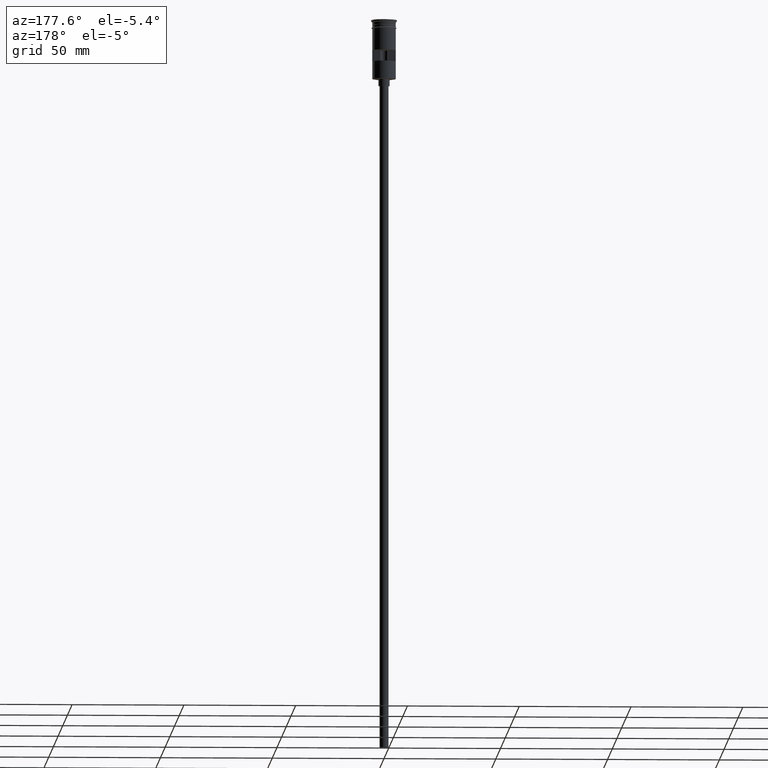
[diagram: clean part render]
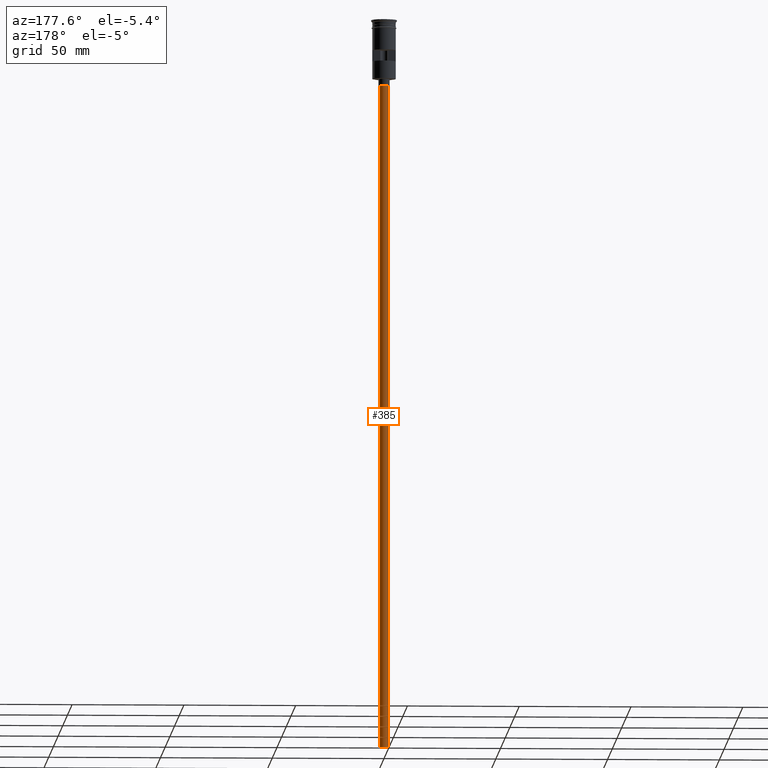
[diagram: same view with one face highlighted and labeled with its STEP entity id]
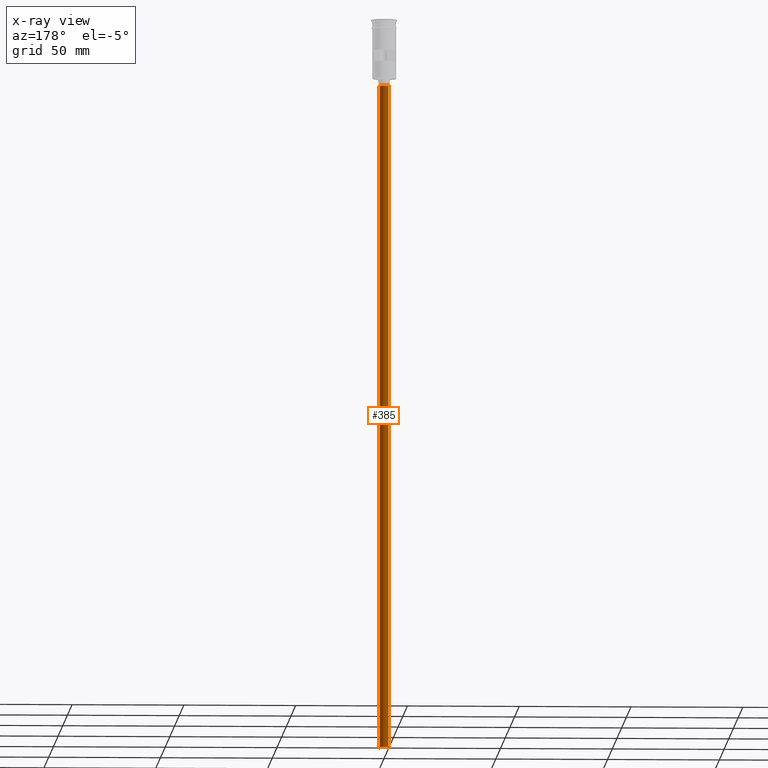
[diagram: x-ray of the same camera — body ghosted, the highlighted face saturated]
A machine part, auxiliary view. The second image highlights one B-rep face of the part: STEP entity #385.
The next image is the same camera in x-ray: the body ghosted, the highlighted face saturated — about 0% of this face is hidden behind the body in this view.
In plain terms, the highlighted cylindrical surface (edge-blend (fillet) strip) has radius 2 mm, axis along (-0, -0, 1).
Its self-contained STEP definition (entity closure, byte-faithful):
#9 = CARTESIAN_POINT ( 'NONE',  ( 0.000000000000000000, 0.000000000000000000, -326.5000000000000000 ) ) ;
#44 = ORIENTED_EDGE ( 'NONE', *, *, #650, .T. ) ;
#59 = EDGE_LOOP ( 'NONE', ( #116, #44, #413, #1452 ) ) ;
#88 = CIRCLE ( 'NONE', #297, 2.000000000000000000 ) ;
#94 = EDGE_CURVE ( 'NONE', #295, #545, #940, .T. ) ;
#116 = ORIENTED_EDGE ( 'NONE', *, *, #337, .F. ) ;
#221 = CARTESIAN_POINT ( 'NONE',  ( -2.000000000000000000, 2.449293598294706414E-16, -326.5000000000000000 ) ) ;
#292 = CARTESIAN_POINT ( 'NONE',  ( -2.000000000000000000, 2.449293598294706414E-16, -326.5000000000000000 ) ) ;
#295 = VERTEX_POINT ( 'NONE', #342 ) ;
#297 = AXIS2_PLACEMENT_3D ( 'NONE', #1489, #1202, #961 ) ;
#337 = EDGE_CURVE ( 'NONE', #445, #295, #1474, .T. ) ;
#342 = CARTESIAN_POINT ( 'NONE',  ( 2.000000000000000000, 0.000000000000000000, -326.5000000000000000 ) ) ;
#385 = ADVANCED_FACE ( 'NONE', ( #735 ), #632, .T. ) ;
#413 = ORIENTED_EDGE ( 'NONE', *, *, #611, .T. ) ;
#445 = VERTEX_POINT ( 'NONE', #292 ) ;
#545 = VERTEX_POINT ( 'NONE', #920 ) ;
#577 = VERTEX_POINT ( 'NONE', #1297 ) ;
#611 = EDGE_CURVE ( 'NONE', #577, #545, #88, .T. ) ;
#632 = CYLINDRICAL_SURFACE ( 'NONE', #1077, 2.000000000000000000 ) ;
#649 = CARTESIAN_POINT ( 'NONE',  ( 0.000000000000000000, 0.000000000000000000, -326.5000000000000000 ) ) ;
#650 = EDGE_CURVE ( 'NONE', #445, #577, #869, .T. ) ;
#695 = CARTESIAN_POINT ( 'NONE',  ( 2.000000000000000000, 0.000000000000000000, -326.5000000000000000 ) ) ;
#717 = VECTOR ( 'NONE', #721, 1000.000000000000000 ) ;
#721 = DIRECTION ( 'NONE',  ( -0.000000000000000000, -0.000000000000000000, 1.000000000000000000 ) ) ;
#735 = FACE_OUTER_BOUND ( 'NONE', #59, .T. ) ;
#768 = DIRECTION ( 'NONE',  ( 0.000000000000000000, 0.000000000000000000, -1.000000000000000000 ) ) ;
#827 = DIRECTION ( 'NONE',  ( -0.000000000000000000, -0.000000000000000000, 1.000000000000000000 ) ) ;
#869 = LINE ( 'NONE', #221, #717 ) ;
#920 = CARTESIAN_POINT ( 'NONE',  ( 2.000000000000000000, 0.000000000000000000, -29.50000000000000000 ) ) ;
#940 = LINE ( 'NONE', #695, #1104 ) ;
#961 = DIRECTION ( 'NONE',  ( -1.000000000000000000, 0.000000000000000000, 0.000000000000000000 ) ) ;
#1009 = DIRECTION ( 'NONE',  ( -1.000000000000000000, 0.000000000000000000, 0.000000000000000000 ) ) ;
#1077 = AXIS2_PLACEMENT_3D ( 'NONE', #649, #1534, #1244 ) ;
#1104 = VECTOR ( 'NONE', #827, 1000.000000000000000 ) ;
#1180 = AXIS2_PLACEMENT_3D ( 'NONE', #9, #768, #1009 ) ;
#1202 = DIRECTION ( 'NONE',  ( 0.000000000000000000, 0.000000000000000000, -1.000000000000000000 ) ) ;
#1244 = DIRECTION ( 'NONE',  ( 1.000000000000000000, 0.000000000000000000, 0.000000000000000000 ) ) ;
#1297 = CARTESIAN_POINT ( 'NONE',  ( -2.000000000000000000, 2.449293598294706414E-16, -29.50000000000000000 ) ) ;
#1452 = ORIENTED_EDGE ( 'NONE', *, *, #94, .F. ) ;
#1474 = CIRCLE ( 'NONE', #1180, 2.000000000000000000 ) ;
#1489 = CARTESIAN_POINT ( 'NONE',  ( 0.000000000000000000, 0.000000000000000000, -29.50000000000000000 ) ) ;
#1534 = DIRECTION ( 'NONE',  ( -0.000000000000000000, -0.000000000000000000, 1.000000000000000000 ) ) ;